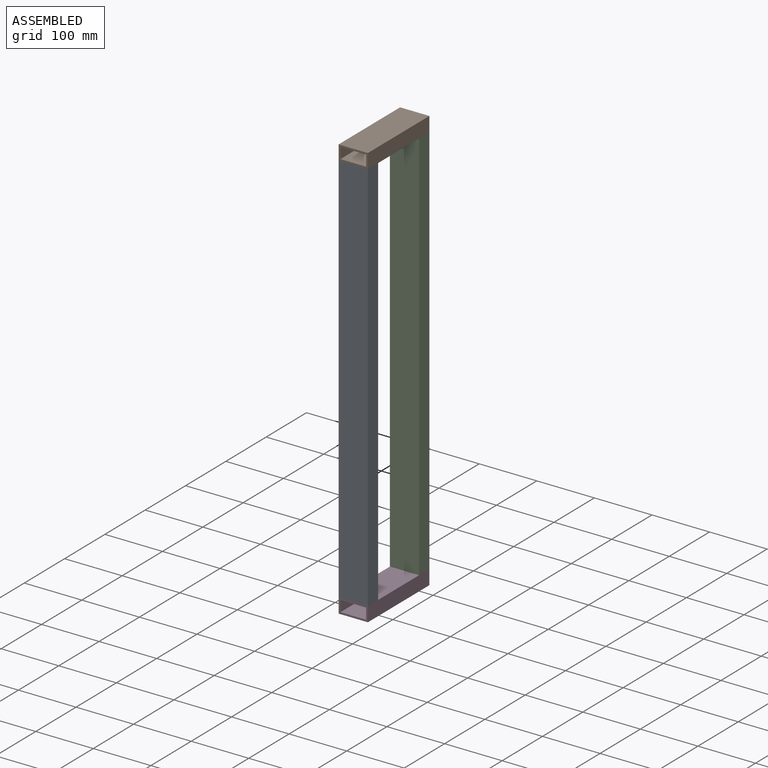
[diagram: assembled view]
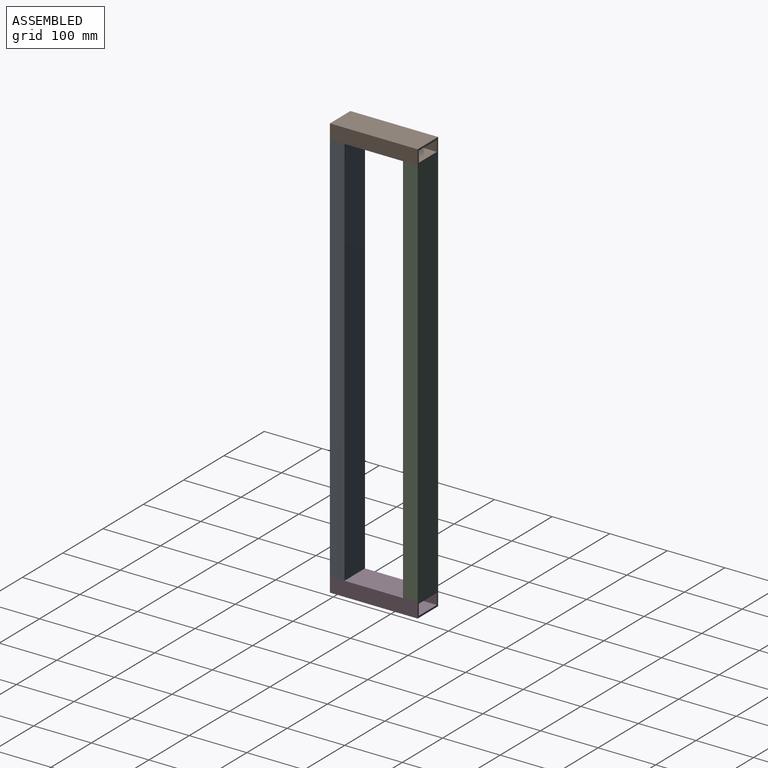
[diagram: assembled view, second angle]
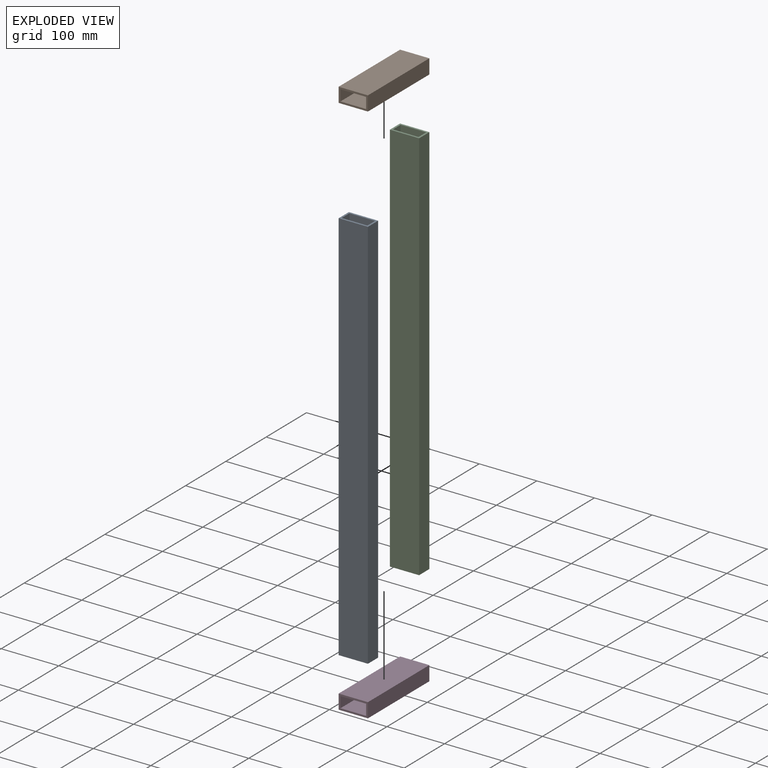
[diagram: exploded view]
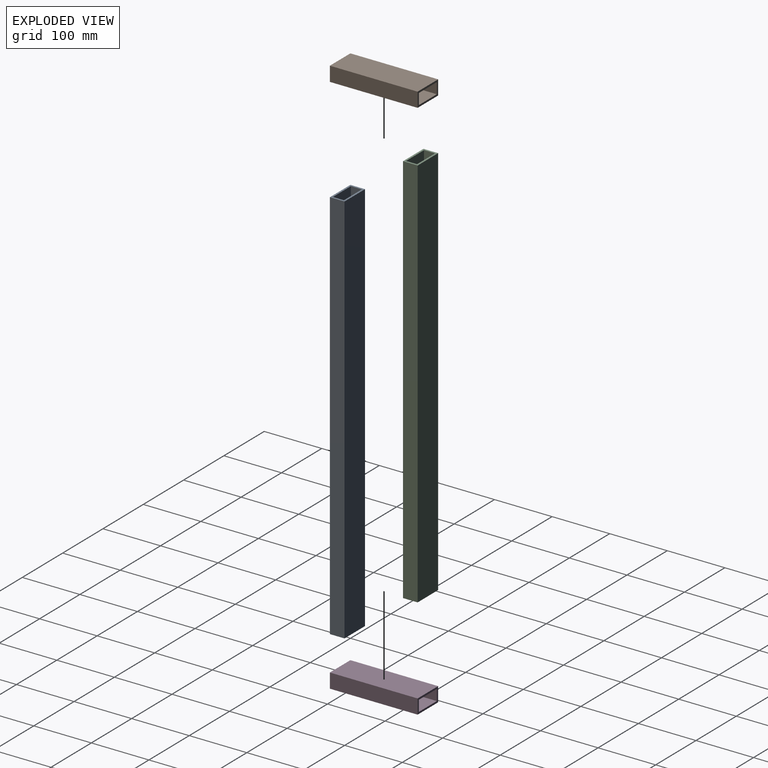
[diagram: exploded view, second angle]
ASSEMBLY  parts=4 mates=3
PART A: 10 faces, bbox 50.8x25.4x685.8 mm
  f0: plane 685.8x50.8mm, normal (0,1,0), area 34838.6mm2, adj f1,f7,f8,f9
  f1: plane 685.8x25.4mm, normal (-1,0,0), area 17419.3mm2, adj f0,f2,f8,f9
  f2: plane 685.8x50.8mm, normal (0,-1,0), area 34838.6mm2, adj f1,f7,f8,f9
  f3: plane 685.8x44.45mm, normal (0,-1,0), area 30483.8mm2, adj f4,f6,f8,f9
  f4: plane 685.8x19.05mm, normal (-1,0,0), area 13064.5mm2, adj f3,f5,f8,f9
  f5: plane 685.8x44.45mm, normal (0,1,0), area 30483.8mm2, adj f4,f6,f8,f9
  f6: plane 685.8x19.05mm, normal (1,0,0), area 13064.5mm2, adj f3,f5,f8,f9
  f7: plane 685.8x25.4mm, normal (1,0,0), area 17419.3mm2, adj f0,f2,f8,f9
  f8: plane 50.8x25.4mm, normal (0,0,1), area 443.5mm2, adj f0,f1,f2,f3,f4,f5,f6,f7
  f9: plane 50.8x25.4mm, normal (0,0,-1), area 443.5mm2, adj f0,f1,f2,f3,f4,f5,f6,f7
PART B: 10 faces, bbox 50.8x25.4x152.4 mm
  f0: plane 152.4x50.8mm, normal (0,1,0), area 7741.9mm2, adj f1,f7,f8,f9
  f1: plane 152.4x25.4mm, normal (-1,0,0), area 3871mm2, adj f0,f2,f8,f9
  f2: plane 152.4x50.8mm, normal (0,-1,0), area 7741.9mm2, adj f1,f7,f8,f9
  f3: plane 152.4x44.45mm, normal (0,-1,0), area 6774.2mm2, adj f4,f6,f8,f9
  f4: plane 152.4x19.05mm, normal (-1,0,0), area 2903.2mm2, adj f3,f5,f8,f9
  f5: plane 152.4x44.45mm, normal (0,1,0), area 6774.2mm2, adj f4,f6,f8,f9
  f6: plane 152.4x19.05mm, normal (1,0,0), area 2903.2mm2, adj f3,f5,f8,f9
  f7: plane 152.4x25.4mm, normal (1,0,0), area 3871mm2, adj f0,f2,f8,f9
  f8: plane 50.8x25.4mm, normal (0,0,1), area 443.5mm2, adj f0,f1,f2,f3,f4,f5,f6,f7
  f9: plane 50.8x25.4mm, normal (0,0,-1), area 443.5mm2, adj f0,f1,f2,f3,f4,f5,f6,f7
PART C: same geometry as A
PART D: same geometry as B
PLACE A t=(-267.99,-187.26,-236.16)mm
PLACE B rot(axis=(1,0,0),90deg) t=(-267.99,-60.26,475.04)mm
PLACE C t=(-267.99,-60.26,-236.16)mm
PLACE D rot(axis=(0,-0.71,0.71),180deg) t=(-231.27,-60.26,-261.56)mm
MATE parallel B.f2 <-> C.f8  axis (0,0,-1) through (-224.23,-60.26,449.64)mm
MATE parallel A.f8 <-> B.f2  axis (0,0,1) through (-224.23,-212.66,449.64)mm
MATE parallel D.f2 <-> C.f9  axis (0,0,1) through (-224.23,-60.26,-236.16)mm
